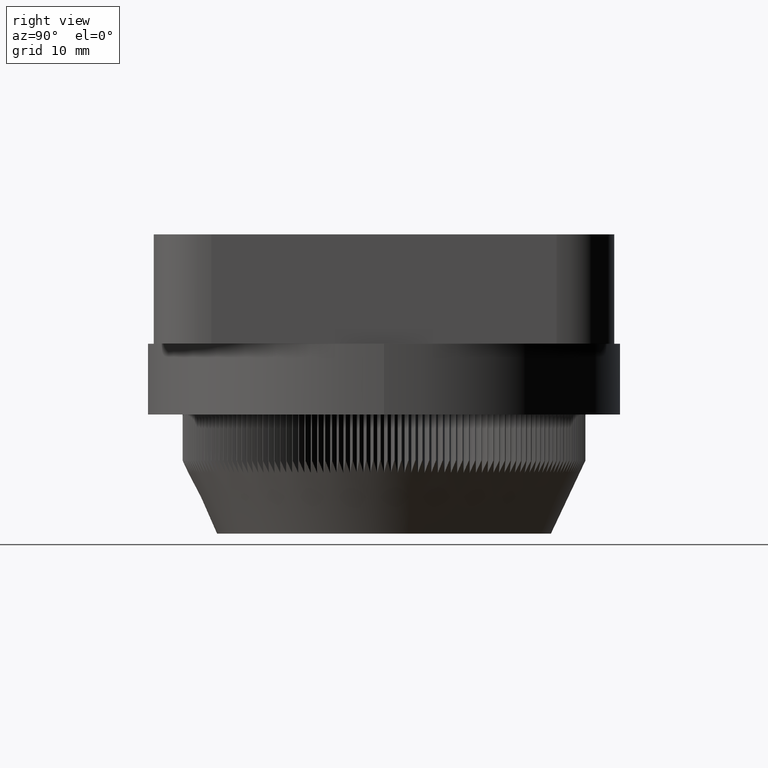
[diagram: clean part render]
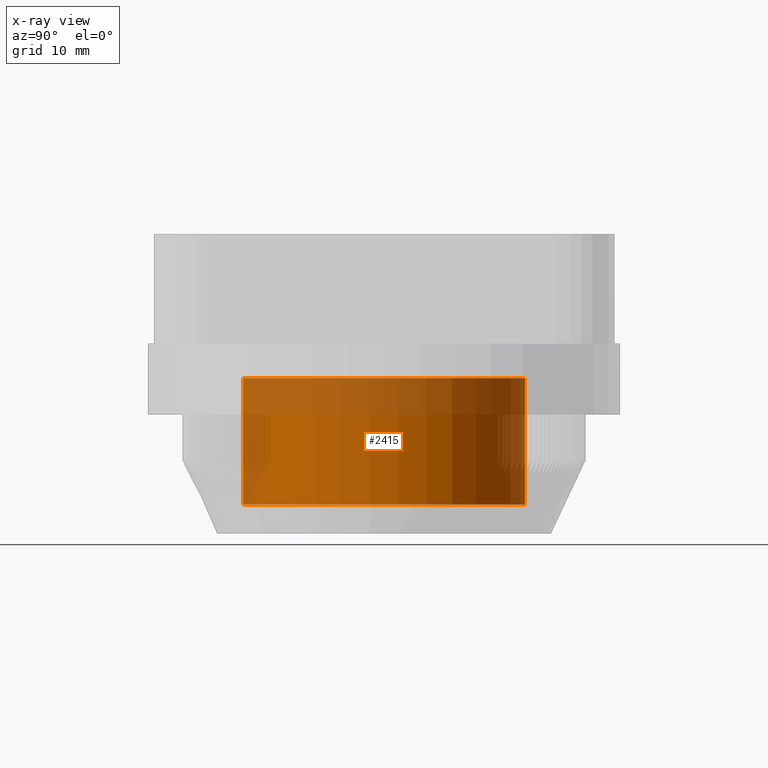
[diagram: x-ray — body ghosted, one internal face saturated and labeled with its STEP entity id]
A machine part, right view, then the same camera in x-ray: the body is ghosted and one INTERNAL B-rep face — a face not visible from any outside direction — is saturated and labeled: STEP entity #2415.
In plain terms, the highlighted cylindrical surface (bore or boss wall) has radius 12.25 mm, axis along (0, 0, 1).
Its self-contained STEP definition (entity closure, byte-faithful):
#2388=CARTESIAN_POINT('',(-3.853483861351106,-8.713519538058748,-14.000000000000002));
#2389=DIRECTION('',(0.0,0.0,1.0));
#2390=DIRECTION('',(1.0,0.0,0.0));
#2391=AXIS2_PLACEMENT_3D('',#2388,#2389,#2390);
#2392=CYLINDRICAL_SURFACE('',#2391,12.250000000000000);
#2393=CARTESIAN_POINT('',(-16.103483861351108,-8.713519538058746,-3.000000000000000));
#2394=VERTEX_POINT('',#2393);
#2395=CARTESIAN_POINT('',(-3.853483861351106,-8.713519538058748,-3.000000000000000));
#2396=DIRECTION('',(0.0,0.0,-1.0));
#2397=DIRECTION('',(1.0,0.0,0.0));
#2398=AXIS2_PLACEMENT_3D('',#2395,#2396,#2397);
#2399=CIRCLE('',#2398,12.250000000000000);
#2400=EDGE_CURVE('',#2394,#2394,#2399,.T.);
#2401=ORIENTED_EDGE('',*,*,#2400,.F.);
#2402=EDGE_LOOP('',(#2401));
#2403=FACE_OUTER_BOUND('',#2402,.T.);
#2404=CARTESIAN_POINT('',(-16.103483861351108,-8.713519538058746,-14.000000000000002));
#2405=VERTEX_POINT('',#2404);
#2406=CARTESIAN_POINT('',(-3.853483861351106,-8.713519538058748,-14.000000000000002));
#2407=DIRECTION('',(0.0,0.0,1.0));
#2408=DIRECTION('',(1.0,0.0,0.0));
#2409=AXIS2_PLACEMENT_3D('',#2406,#2407,#2408);
#2410=CIRCLE('',#2409,12.250000000000000);
#2411=EDGE_CURVE('',#2405,#2405,#2410,.T.);
#2412=ORIENTED_EDGE('',*,*,#2411,.F.);
#2413=EDGE_LOOP('',(#2412));
#2414=FACE_BOUND('',#2413,.T.);
#2415=ADVANCED_FACE('',(#2403,#2414),#2392,.F.);